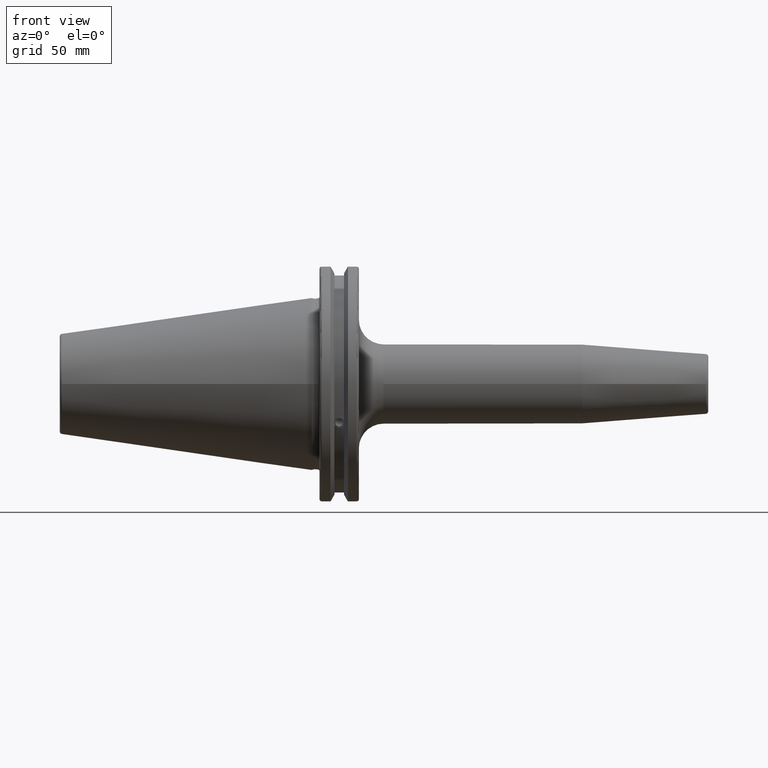
[diagram: clean part render]
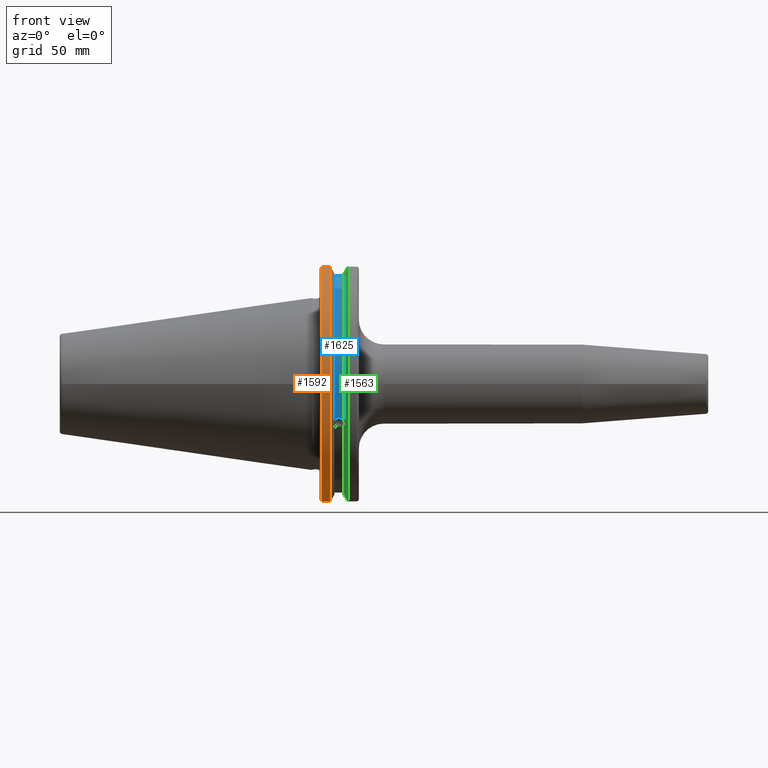
[diagram: same view with three faces highlighted in distinct colors, each labeled with its STEP entity id]
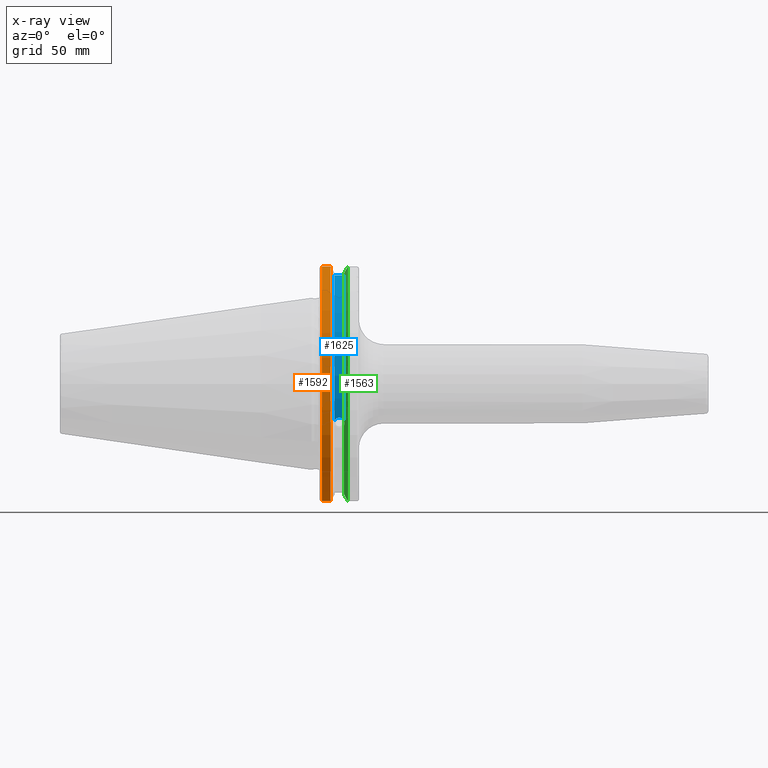
[diagram: x-ray of the same camera — body ghosted, the three highlighted faces saturated]
A machine part, front view with three faces highlighted in distinct colors.
The next image is the same camera in x-ray (body ghosted, the three faces saturated) — at least one of them is partly hidden behind the body in this view.
Their STEP definitions:

[orange] entity #1592 — the highlighted cylindrical surface (partial cylindrical patch) has radius 49.2125 mm, axis along (1, 0, 0).
#160=LINE('',#3107,#258);
#161=LINE('',#3113,#259);
#258=VECTOR('',#2147,10.);
#259=VECTOR('',#2150,10.);
#303=CYLINDRICAL_SURFACE('',#1772,49.2125);
#431=FACE_OUTER_BOUND('',#542,.T.);
#542=EDGE_LOOP('',(#1369,#1370,#1371,#1372));
#640=CIRCLE('',#1770,49.2125);
#641=CIRCLE('',#1773,49.2125);
#796=VERTEX_POINT('',#3086);
#797=VERTEX_POINT('',#3095);
#798=VERTEX_POINT('',#3106);
#799=VERTEX_POINT('',#3112);
#1003=EDGE_CURVE('',#796,#797,#640,.T.);
#1005=EDGE_CURVE('',#797,#798,#160,.T.);
#1007=EDGE_CURVE('',#799,#796,#161,.T.);
#1008=EDGE_CURVE('',#798,#799,#641,.T.);
#1369=ORIENTED_EDGE('',*,*,#1003,.F.);
#1370=ORIENTED_EDGE('',*,*,#1007,.F.);
#1371=ORIENTED_EDGE('',*,*,#1008,.F.);
#1372=ORIENTED_EDGE('',*,*,#1005,.F.);
#1592=ADVANCED_FACE('',(#431),#303,.T.);
#1770=AXIS2_PLACEMENT_3D('',#3096,#2143,#2144);
#1772=AXIS2_PLACEMENT_3D('',#3111,#2148,#2149);
#1773=AXIS2_PLACEMENT_3D('',#3114,#2151,#2152);
#2143=DIRECTION('center_axis',(-1.,0.,0.));
#2144=DIRECTION('ref_axis',(0.,-1.,1.60812264967664E-16));
#2147=DIRECTION('',(1.,0.,0.));
#2148=DIRECTION('center_axis',(1.,0.,0.));
#2149=DIRECTION('ref_axis',(0.,-1.,1.22464679914735E-16));
#2150=DIRECTION('',(-1.,0.,0.));
#2151=DIRECTION('center_axis',(1.,0.,0.));
#2152=DIRECTION('ref_axis',(0.,0.,-1.));
#3086=CARTESIAN_POINT('',(4.175,-13.4317035994433,-47.3440544806494));
#3095=CARTESIAN_POINT('',(4.175,-13.4317035994433,47.3440544806494));
#3096=CARTESIAN_POINT('Origin',(4.175,0.,0.));
#3106=CARTESIAN_POINT('',(7.60799096595127,-13.4317035994433,47.3440544806494));
#3107=CARTESIAN_POINT('',(5.39149548297563,-13.4317035994433,47.3440544806494));
#3111=CARTESIAN_POINT('Origin',(5.39149548297563,0.,0.));
#3112=CARTESIAN_POINT('',(7.60799096595127,-13.4317035994433,-47.3440544806494));
#3113=CARTESIAN_POINT('',(5.39149548297563,-13.4317035994433,-47.3440544806494));
#3114=CARTESIAN_POINT('Origin',(7.60799096595127,0.,0.));

[blue] entity #1625 — the highlighted cylindrical surface (partial cylindrical patch) has radius 45.6435 mm, axis along (1, 0, 0).
#40=B_SPLINE_CURVE_WITH_KNOTS('',3,(#2580,#2581,#2582,#2583,#2584,#2585,
#2586,#2587,#2588,#2589,#2590,#2591,#2592,#2593),.UNSPECIFIED.,.F.,.F.,
(4,2,2,2,2,2,4),(0.40154831257669,0.474697095495631,0.553813286063443,0.632929476631254,
0.712045667199066,0.791161857766877,0.864310640685818),.UNSPECIFIED.);
#154=LINE('',#3067,#252);
#252=VECTOR('',#2133,10.);
#310=CYLINDRICAL_SURFACE('',#1823,45.6435);
#464=FACE_OUTER_BOUND('',#578,.T.);
#578=EDGE_LOOP('',(#1518,#1519,#1520,#1521));
#658=CIRCLE('',#1822,45.6435);
#659=CIRCLE('',#1824,45.6435);
#710=VERTEX_POINT('',#2577);
#711=VERTEX_POINT('',#2579);
#792=VERTEX_POINT('',#3064);
#793=VERTEX_POINT('',#3066);
#885=EDGE_CURVE('',#711,#710,#40,.T.);
#994=EDGE_CURVE('',#793,#792,#154,.T.);
#1052=EDGE_CURVE('',#792,#711,#658,.T.);
#1053=EDGE_CURVE('',#793,#710,#659,.T.);
#1518=ORIENTED_EDGE('',*,*,#885,.T.);
#1519=ORIENTED_EDGE('',*,*,#1053,.F.);
#1520=ORIENTED_EDGE('',*,*,#994,.T.);
#1521=ORIENTED_EDGE('',*,*,#1052,.T.);
#1625=ADVANCED_FACE('',(#464),#310,.T.);
#1822=AXIS2_PLACEMENT_3D('',#3233,#2270,#2271);
#1823=AXIS2_PLACEMENT_3D('',#3234,#2272,#2273);
#1824=AXIS2_PLACEMENT_3D('',#3235,#2274,#2275);
#2133=DIRECTION('',(-1.,0.,0.));
#2270=DIRECTION('center_axis',(1.,0.,0.));
#2271=DIRECTION('ref_axis',(0.,0.,-1.));
#2272=DIRECTION('center_axis',(1.,0.,0.));
#2273=DIRECTION('ref_axis',(0.,-0.888619069115281,0.458645996390125));
#2274=DIRECTION('center_axis',(1.,0.,0.));
#2275=DIRECTION('ref_axis',(0.,0.,-1.));
#2577=CARTESIAN_POINT('',(13.0491,-43.1779814500336,-14.7983448449669));
#2579=CARTESIAN_POINT('',(9.2191,-43.1779814500336,-14.7983448449669));
#2580=CARTESIAN_POINT('Ctrl Pts',(9.2191,-43.1779814500335,-14.7983448449669));
#2581=CARTESIAN_POINT('Ctrl Pts',(9.32532177598176,-43.2545173750974,-14.5750315766731));
#2582=CARTESIAN_POINT('Ctrl Pts',(9.47680807557665,-43.3223492818373,-14.3712521044637));
#2583=CARTESIAN_POINT('Ctrl Pts',(9.83560503400179,-43.4340904392251,-14.0300988117073));
#2584=CARTESIAN_POINT('Ctrl Pts',(10.0717203280543,-43.4832903960863,-13.8760243976176));
#2585=CARTESIAN_POINT('Ctrl Pts',(10.5891059167872,-43.54802519266,-13.6715068146718));
#2586=CARTESIAN_POINT('Ctrl Pts',(10.870379364774,-43.5636826100883,-13.6211104428929));
#2587=CARTESIAN_POINT('Ctrl Pts',(11.397820635226,-43.5636826100883,-13.6211104428929));
#2588=CARTESIAN_POINT('Ctrl Pts',(11.6790940832128,-43.54802519266,-13.6715068146718));
#2589=CARTESIAN_POINT('Ctrl Pts',(12.1964796719457,-43.4832903960863,-13.8760243976176));
#2590=CARTESIAN_POINT('Ctrl Pts',(12.4325949659982,-43.4340904392251,-14.0300988117073));
#2591=CARTESIAN_POINT('Ctrl Pts',(12.7913919244233,-43.3223492818373,-14.3712521044637));
#2592=CARTESIAN_POINT('Ctrl Pts',(12.9428782240182,-43.2545173750974,-14.5750315766731));
#2593=CARTESIAN_POINT('Ctrl Pts',(13.0491,-43.1779814500335,-14.7983448449669));
#3064=CARTESIAN_POINT('',(9.2191,-12.95,43.7678716897452));
#3066=CARTESIAN_POINT('',(13.0491,-12.95,43.7678716897452));
#3067=CARTESIAN_POINT('',(11.1341,-12.95,43.7678716897452));
#3233=CARTESIAN_POINT('Origin',(9.2191,0.,0.));
#3234=CARTESIAN_POINT('Origin',(11.1341,0.,0.));
#3235=CARTESIAN_POINT('Origin',(13.0491,0.,0.));

[green] entity #1563 — the highlighted conical surface has half-angle 60 deg.
#15=(
BOUNDED_CURVE()
B_SPLINE_CURVE(2,(#2660,#2661,#2662),.UNSPECIFIED.,.F.,.F.)
B_SPLINE_CURVE_WITH_KNOTS((3,3),(0.,0.275823910673374),.UNSPECIFIED.)
CURVE()
GEOMETRIC_REPRESENTATION_ITEM()
RATIONAL_B_SPLINE_CURVE((1.,1.00038235574978,1.00012873636953))
REPRESENTATION_ITEM('')
);
#16=(
BOUNDED_CURVE()
B_SPLINE_CURVE(2,(#2664,#2665,#2666),.UNSPECIFIED.,.F.,.F.)
B_SPLINE_CURVE_WITH_KNOTS((3,3),(0.,0.0648240472896156),.UNSPECIFIED.)
CURVE()
GEOMETRIC_REPRESENTATION_ITEM()
RATIONAL_B_SPLINE_CURVE((1.,1.00011477674884,1.00019140646027))
REPRESENTATION_ITEM('')
);
#17=(
BOUNDED_CURVE()
B_SPLINE_CURVE(2,(#2670,#2671,#2672),.UNSPECIFIED.,.F.,.F.)
B_SPLINE_CURVE_WITH_KNOTS((3,3),(0.325260944932494,0.3900849922222),
 .UNSPECIFIED.)
CURVE()
GEOMETRIC_REPRESENTATION_ITEM()
RATIONAL_B_SPLINE_CURVE((1.00019140645961,1.00011477674844,1.))
REPRESENTATION_ITEM('')
);
#18=(
BOUNDED_CURVE()
B_SPLINE_CURVE(2,(#2674,#2675,#2676),.UNSPECIFIED.,.F.,.F.)
B_SPLINE_CURVE_WITH_KNOTS((3,3),(0.0558332664531015,0.331657177124503),
 .UNSPECIFIED.)
CURVE()
GEOMETRIC_REPRESENTATION_ITEM()
RATIONAL_B_SPLINE_CURVE((1.00012873636668,1.00038235574129,1.))
REPRESENTATION_ITEM('')
);
#39=B_SPLINE_CURVE_WITH_KNOTS('',3,(#2569,#2570,#2571,#2572,#2573,#2574,
#2575,#2576),.UNSPECIFIED.,.F.,.F.,(4,2,2,4),(0.42671286835872,0.441644498666905,
0.480313313223129,0.518982127779353),.UNSPECIFIED.);
#43=B_SPLINE_CURVE_WITH_KNOTS('',3,(#2631,#2632,#2633,#2634,#2635,#2636,
#2637,#2638),.UNSPECIFIED.,.F.,.F.,(4,2,2,4),(0.518982127779353,0.557650942335576,
0.5963197568918,0.611251387199985),.UNSPECIFIED.);
#75=CONICAL_SURFACE('',#1713,47.8172386482472,1.0471975511966);
#402=FACE_OUTER_BOUND('',#506,.T.);
#506=EDGE_LOOP('',(#1191,#1192,#1193,#1194,#1195,#1196,#1197,#1198,#1199));
#612=CIRCLE('',#1714,46.4219772964944);
#613=CIRCLE('',#1715,49.2125);
#614=CIRCLE('',#1716,46.4219772964944);
#708=VERTEX_POINT('',#2566);
#709=VERTEX_POINT('',#2568);
#716=VERTEX_POINT('',#2629);
#722=VERTEX_POINT('',#2657);
#723=VERTEX_POINT('',#2659);
#724=VERTEX_POINT('',#2663);
#725=VERTEX_POINT('',#2667);
#726=VERTEX_POINT('',#2669);
#727=VERTEX_POINT('',#2673);
#883=EDGE_CURVE('',#709,#708,#39,.T.);
#891=EDGE_CURVE('',#708,#716,#43,.T.);
#899=EDGE_CURVE('',#716,#722,#612,.T.);
#900=EDGE_CURVE('',#722,#723,#15,.T.);
#901=EDGE_CURVE('',#724,#723,#16,.T.);
#902=EDGE_CURVE('',#725,#724,#613,.T.);
#903=EDGE_CURVE('',#726,#725,#17,.T.);
#904=EDGE_CURVE('',#726,#727,#18,.T.);
#905=EDGE_CURVE('',#727,#709,#614,.T.);
#1191=ORIENTED_EDGE('',*,*,#883,.T.);
#1192=ORIENTED_EDGE('',*,*,#891,.T.);
#1193=ORIENTED_EDGE('',*,*,#899,.T.);
#1194=ORIENTED_EDGE('',*,*,#900,.T.);
#1195=ORIENTED_EDGE('',*,*,#901,.F.);
#1196=ORIENTED_EDGE('',*,*,#902,.F.);
#1197=ORIENTED_EDGE('',*,*,#903,.F.);
#1198=ORIENTED_EDGE('',*,*,#904,.T.);
#1199=ORIENTED_EDGE('',*,*,#905,.T.);
#1563=ADVANCED_FACE('',(#402),#75,.T.);
#1713=AXIS2_PLACEMENT_3D('',#2656,#1987,#1988);
#1714=AXIS2_PLACEMENT_3D('',#2658,#1989,#1990);
#1715=AXIS2_PLACEMENT_3D('',#2668,#1991,#1992);
#1716=AXIS2_PLACEMENT_3D('',#2677,#1993,#1994);
#1987=DIRECTION('center_axis',(1.,0.,0.));
#1988=DIRECTION('ref_axis',(0.,-1.,-1.22464679914735E-16));
#1989=DIRECTION('center_axis',(1.,0.,0.));
#1990=DIRECTION('ref_axis',(0.,0.,-1.));
#1991=DIRECTION('center_axis',(1.,0.,0.));
#1992=DIRECTION('ref_axis',(0.,0.,-1.));
#1993=DIRECTION('center_axis',(1.,0.,0.));
#1994=DIRECTION('ref_axis',(0.,0.,-1.));
#2566=CARTESIAN_POINT('',(13.2341,-43.923494649906,-15.9868446375166));
#2568=CARTESIAN_POINT('',(13.0491,-43.9096390749305,-15.0646464421033));
#2569=CARTESIAN_POINT('Ctrl Pts',(13.0491,-43.9096390749305,-15.0646464421033));
#2570=CARTESIAN_POINT('Ctrl Pts',(13.0660815609661,-43.9250360001461,-15.1104047527575));
#2571=CARTESIAN_POINT('Ctrl Pts',(13.0821132459668,-43.9385582852181,-15.1564111356409));
#2572=CARTESIAN_POINT('Ctrl Pts',(13.1358132615496,-43.9797830409459,-15.3217566390708));
#2573=CARTESIAN_POINT('Ctrl Pts',(13.1719838933644,-43.9989016655819,-15.4570249042868));
#2574=CARTESIAN_POINT('Ctrl Pts',(13.2212913174802,-43.9931221605126,-15.7289849146254));
#2575=CARTESIAN_POINT('Ctrl Pts',(13.2341,-43.9675796948952,-15.8657219718732));
#2576=CARTESIAN_POINT('Ctrl Pts',(13.2341,-43.923494649906,-15.9868446375166));
#2629=CARTESIAN_POINT('',(13.0491,-43.3201030900029,-16.6843832486479));
#2631=CARTESIAN_POINT('Ctrl Pts',(13.2341,-43.923494649906,-15.9868446375166));
#2632=CARTESIAN_POINT('Ctrl Pts',(13.2341,-43.8794096049169,-16.10796730316));
#2633=CARTESIAN_POINT('Ctrl Pts',(13.2212913174802,-43.8110833825827,-16.2291323464527));
#2634=CARTESIAN_POINT('Ctrl Pts',(13.1719838933644,-43.6406982153492,-16.441180795372));
#2635=CARTESIAN_POINT('Ctrl Pts',(13.1358132615496,-43.5391037343221,-16.5325130832406));
#2636=CARTESIAN_POINT('Ctrl Pts',(13.0821132459668,-43.4012416983557,-16.6326763251437));
#2637=CARTESIAN_POINT('Ctrl Pts',(13.0660815609661,-43.3613106941341,-16.6592273018006));
#2638=CARTESIAN_POINT('Ctrl Pts',(13.0491,-43.3201030900029,-16.6843832486479));
#2656=CARTESIAN_POINT('Origin',(13.8546545170244,0.,0.));
#2657=CARTESIAN_POINT('',(13.0491,-12.95,-44.5791147973604));
#2658=CARTESIAN_POINT('Origin',(13.0491,0.,0.));
#2659=CARTESIAN_POINT('',(14.3818103943757,-12.95,-46.9780755322917));
#2660=CARTESIAN_POINT('Ctrl Pts',(13.0491,-12.95,-44.5791147973604));
#2661=CARTESIAN_POINT('Ctrl Pts',(13.697995509466,-12.95,-45.749496680259));
#2662=CARTESIAN_POINT('Ctrl Pts',(14.3818103943757,-12.95,-46.9780755322917));
#2663=CARTESIAN_POINT('',(14.6602090340487,-13.4317035994433,-47.3440544806494));
#2664=CARTESIAN_POINT('Ctrl Pts',(14.6602090340487,-13.4317035994433,-47.3440544806494));
#2665=CARTESIAN_POINT('Ctrl Pts',(14.5199310333617,-13.1896660169964,-47.1601640966263));
#2666=CARTESIAN_POINT('Ctrl Pts',(14.3818103943757,-12.95,-46.9780755322917));
#2667=CARTESIAN_POINT('',(14.6602090340487,-13.4317035994433,47.3440544806494));
#2668=CARTESIAN_POINT('Origin',(14.6602090340487,0.,0.));
#2669=CARTESIAN_POINT('',(14.3818103943757,-12.95,46.9780755322918));
#2670=CARTESIAN_POINT('Ctrl Pts',(14.3818103943757,-12.95,46.9780755322918));
#2671=CARTESIAN_POINT('Ctrl Pts',(14.5199310333617,-13.1896660169966,47.1601640966264));
#2672=CARTESIAN_POINT('Ctrl Pts',(14.6602090340487,-13.4317035994433,47.3440544806494));
#2673=CARTESIAN_POINT('',(13.0491,-12.95,44.5791147973604));
#2674=CARTESIAN_POINT('Ctrl Pts',(14.3818103943757,-12.95,46.9780755322918));
#2675=CARTESIAN_POINT('Ctrl Pts',(13.6979955094846,-12.95,45.7494966802924));
#2676=CARTESIAN_POINT('Ctrl Pts',(13.0491,-12.95,44.5791147973604));
#2677=CARTESIAN_POINT('Origin',(13.0491,0.,0.));